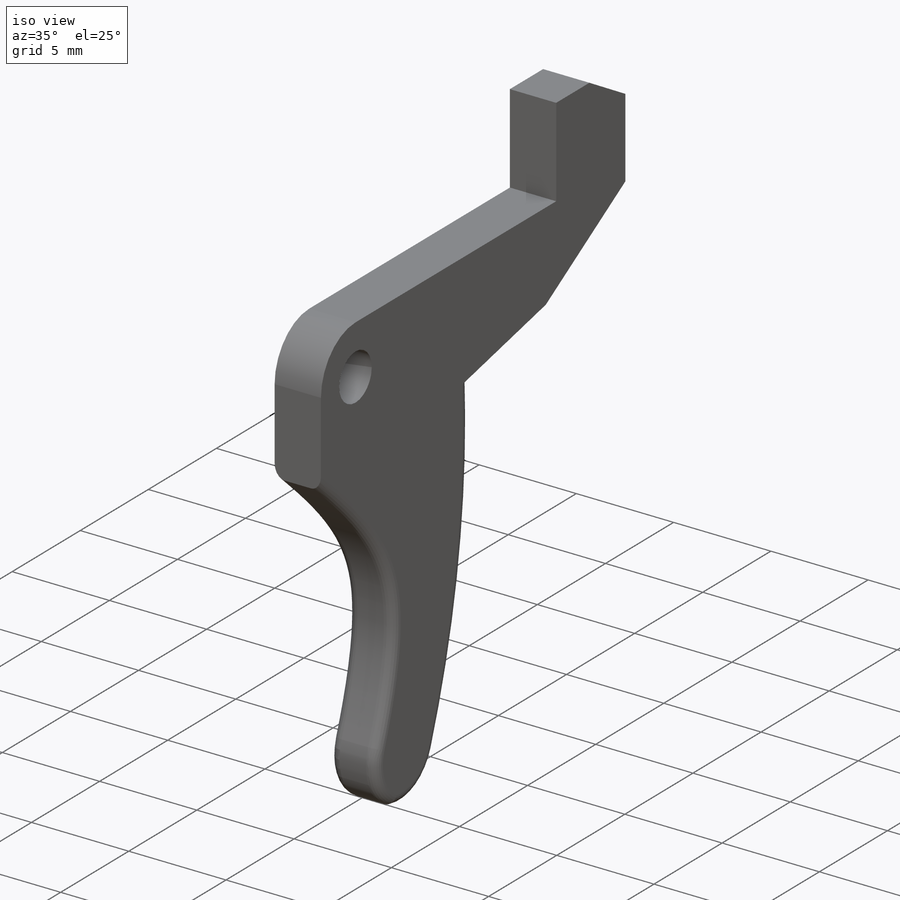
[diagram: iso view]
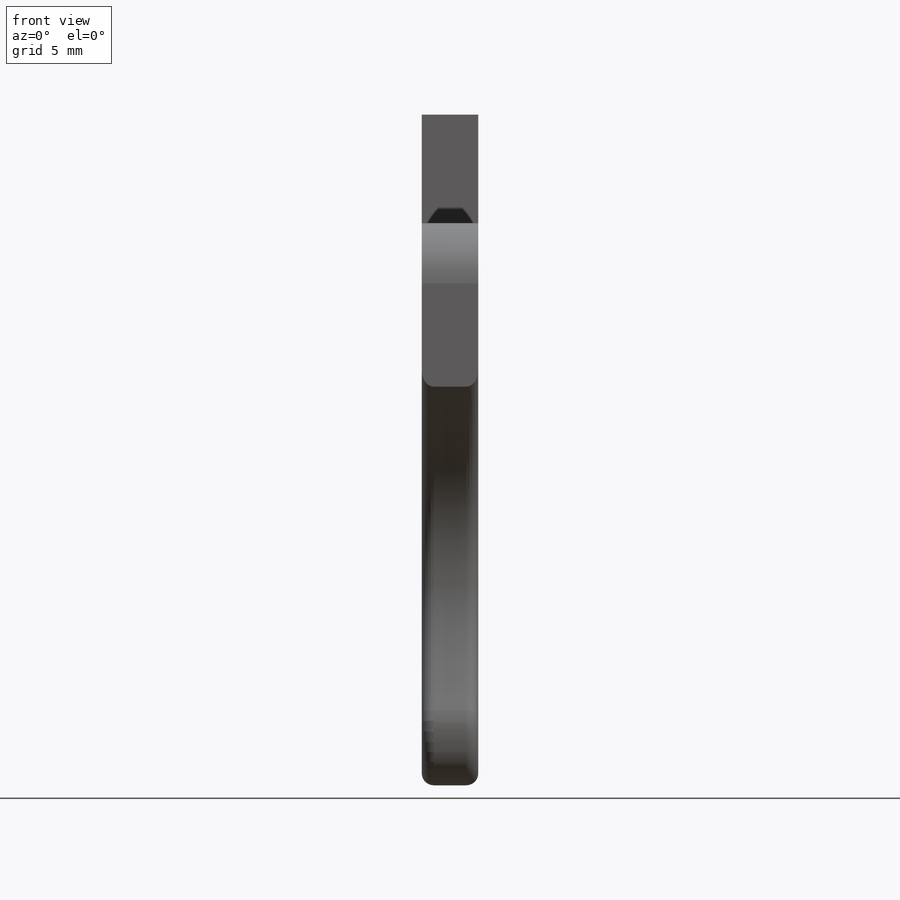
[diagram: front view]
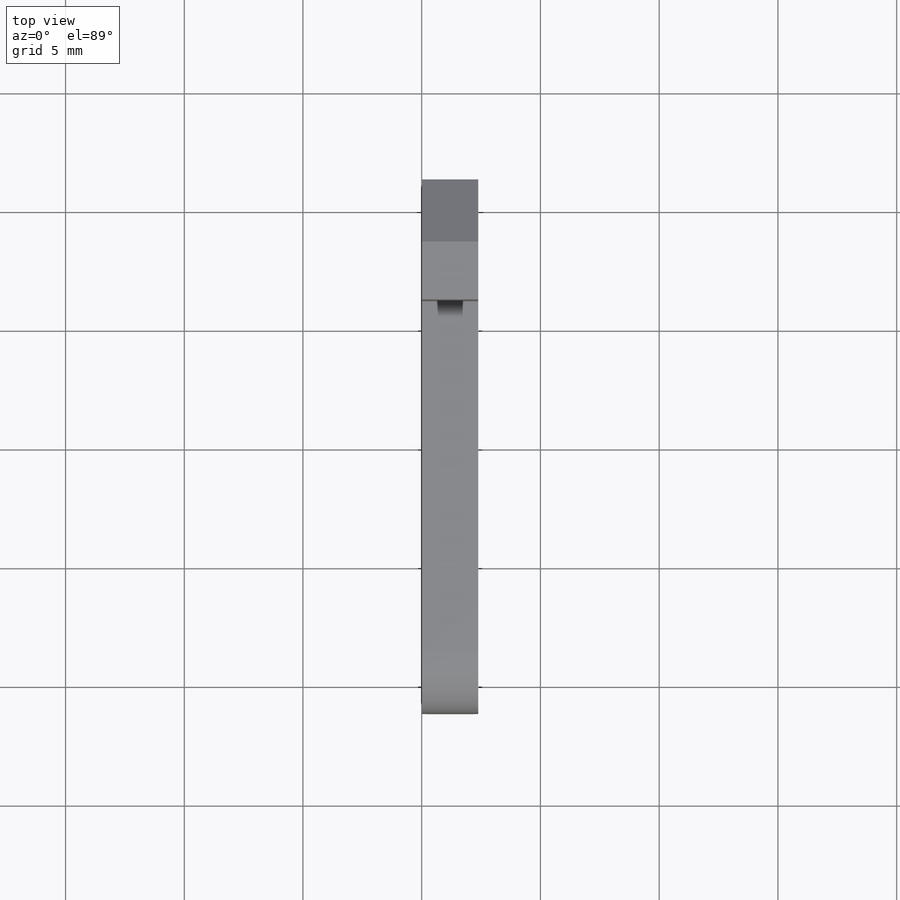
[diagram: top view]
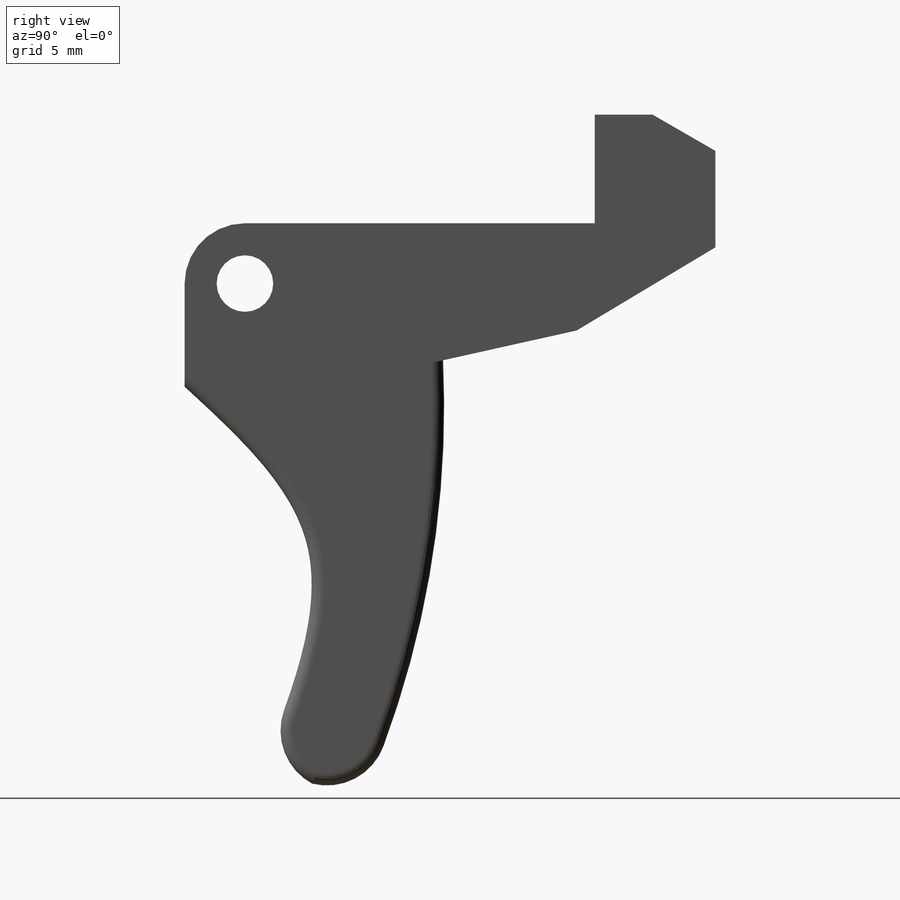
[diagram: right view]
SOLIDWORKS PART (.sldprt)
format: sldprt  version: not decoded by parser v0  size: 190,976 bytes
history: native  units: mm
features: fillet x3, sketch x2, material x1, extrude x1, cut_extrude x1, chamfer x1 (+15 scaffold rows collapsed)
feature tree (24):
  scaffold x15  (default folders/planes/origin — collapsed)
  material  "Material <not specified>"
  sketch  "Sketch2"  dims[c1.D4=2.54mm c1.D6=2.54mm c1.D1=4.572mm c1.D2=5.08mm c1.D3=8.89mm c2.D4=~10.545377mm c2.D5=3.175mm c2.D3=16.002mm c2.D1=5.588mm]
  extrude  "Extrude1"  Depth=2.38125mm
  fillet  "Fillet1"  Radius=2.54mm
  sketch  "Sketch3"  dims[D1=~2.38125mm D2=2.54mm D3=2.54mm]
  cut_extrude  "Cut-Extrude1"  Depth=2.38125mm
  chamfer  "Chamfer1"  Distance=1.524mm Angle=60deg
  fillet  "Fillet2"  Radius=0.508mm
  fillet  "Fillet4"  Radius=2.54mm
decode coverage: 8 of 8 modeling features carry decoded parameters
note: ~ marks probable driven/reference dimensions
note: suppression state not decoded; provenance and decode notes live in map.json
